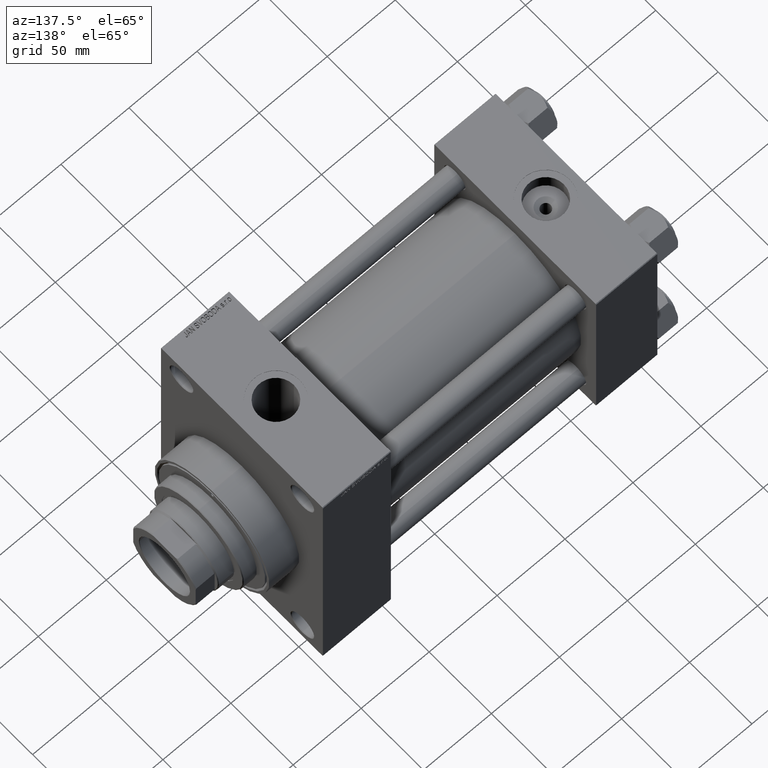
[diagram: clean part render]
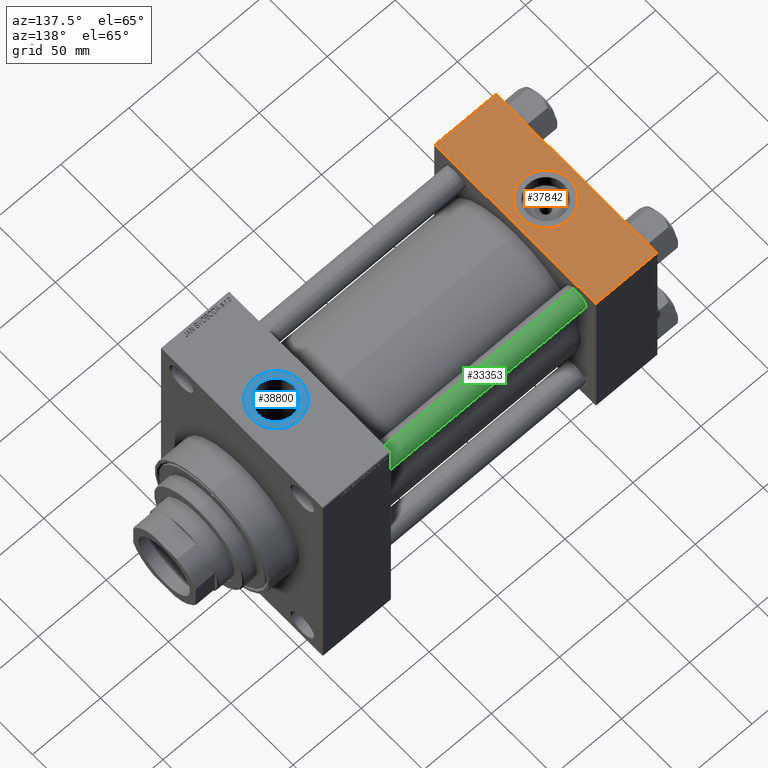
[diagram: same view with three faces highlighted in distinct colors, each labeled with its STEP entity id]
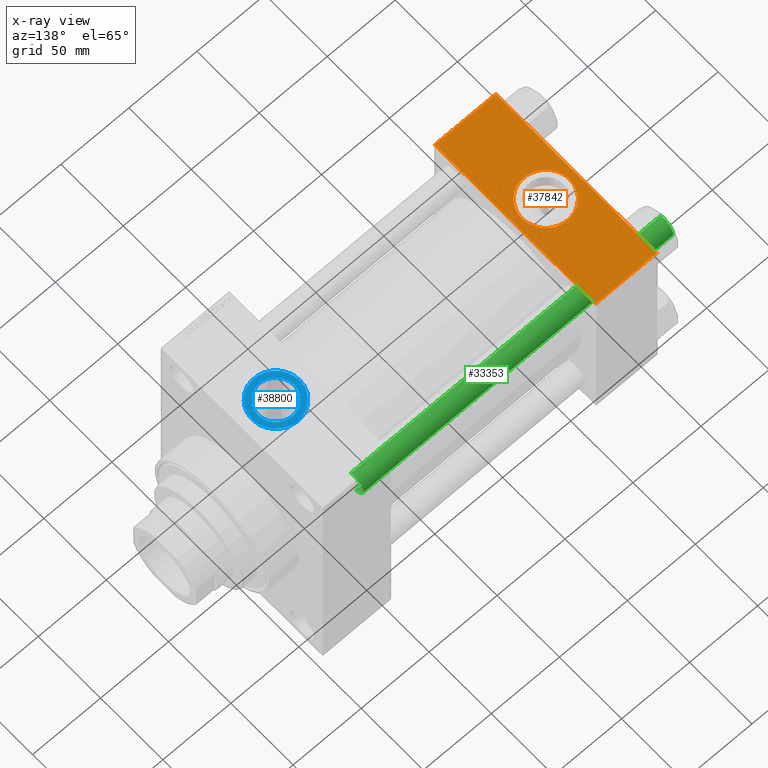
[diagram: x-ray of the same camera — body ghosted, the three highlighted faces saturated]
A machine part, auxiliary view with three faces highlighted in distinct colors.
The next image is the same camera in x-ray (body ghosted, the three faces saturated) — at least one of them is partly hidden behind the body in this view.
Their STEP definitions:

[orange] entity #37842 — the highlighted planar face has unit normal (0, 0, -1).
#776 = CARTESIAN_POINT ( 'NONE',  ( 0.000000000000000000, 65.00000000000000000, 65.00000000000001421 ) ) ;
#1755 = DIRECTION ( 'NONE',  ( 0.000000000000000000, 1.067522139062650548E-16, -1.000000000000000000 ) ) ;
#2551 = VECTOR ( 'NONE', #31020, 1000.000000000000000 ) ;
#4969 = CARTESIAN_POINT ( 'NONE',  ( 0.000000000000000000, 64.49999999999997158, 65.00000000000001421 ) ) ;
#5208 = DIRECTION ( 'NONE',  ( -1.000000000000000000, 0.000000000000000000, 0.000000000000000000 ) ) ;
#5519 = CARTESIAN_POINT ( 'NONE',  ( 40.00000000000000000, -8.673617379884035472E-15, 65.00000000000000000 ) ) ;
#5635 = PLANE ( 'NONE',  #20284 ) ;
#6346 = DIRECTION ( 'NONE',  ( 0.000000000000000000, 1.000000000000000000, 1.067522139062650548E-16 ) ) ;
#6394 = EDGE_CURVE ( 'NONE', #9992, #20948, #29551, .T. ) ;
#7665 = ORIENTED_EDGE ( 'NONE', *, *, #47264, .T. ) ;
#8619 = CARTESIAN_POINT ( 'NONE',  ( 22.50000000000000000, -8.673617379884035472E-15, 65.00000000000000000 ) ) ;
#9411 = LINE ( 'NONE', #20813, #2551 ) ;
#9992 = VERTEX_POINT ( 'NONE', #5519 ) ;
#12484 = DIRECTION ( 'NONE',  ( 1.000000000000000000, 0.000000000000000000, 0.000000000000000000 ) ) ;
#12872 = ORIENTED_EDGE ( 'NONE', *, *, #47202, .F. ) ;
#12874 = EDGE_CURVE ( 'NONE', #20948, #9992, #29118, .T. ) ;
#13391 = CARTESIAN_POINT ( 'NONE',  ( 45.00000000000000000, 65.00000000000000000, 65.00000000000001421 ) ) ;
#13632 = FACE_BOUND ( 'NONE', #38224, .T. ) ;
#15410 = DIRECTION ( 'NONE',  ( 0.000000000000000000, 0.000000000000000000, 1.000000000000000000 ) ) ;
#15467 = VECTOR ( 'NONE', #5208, 1000.000000000000000 ) ;
#18499 = CARTESIAN_POINT ( 'NONE',  ( 45.00000000000000000, 65.00000000000000000, 65.00000000000001421 ) ) ;
#18850 = VERTEX_POINT ( 'NONE', #24603 ) ;
#20284 = AXIS2_PLACEMENT_3D ( 'NONE', #13391, #1755, #6346 ) ;
#20813 = CARTESIAN_POINT ( 'NONE',  ( 45.00000000000000000, -64.49999999999997158, 65.00000000000000000 ) ) ;
#20948 = VERTEX_POINT ( 'NONE', #40118 ) ;
#22913 = AXIS2_PLACEMENT_3D ( 'NONE', #8619, #15410, #30468 ) ;
#23875 = VERTEX_POINT ( 'NONE', #31416 ) ;
#24603 = CARTESIAN_POINT ( 'NONE',  ( 0.000000000000000000, 64.49999999999997158, 65.00000000000001421 ) ) ;
#25319 = LINE ( 'NONE', #18499, #39079 ) ;
#26778 = EDGE_CURVE ( 'NONE', #35205, #18850, #35044, .T. ) ;
#27217 = LINE ( 'NONE', #776, #46813 ) ;
#27941 = ORIENTED_EDGE ( 'NONE', *, *, #26778, .T. ) ;
#29118 = CIRCLE ( 'NONE', #22913, 17.50000000000000000 ) ;
#29551 = CIRCLE ( 'NONE', #32630, 17.50000000000000000 ) ;
#30145 = DIRECTION ( 'NONE',  ( 0.000000000000000000, -1.000000000000000000, -1.067522139062650425E-16 ) ) ;
#30455 = CARTESIAN_POINT ( 'NONE',  ( 22.50000000000000000, -8.673617379884035472E-15, 65.00000000000000000 ) ) ;
#30468 = DIRECTION ( 'NONE',  ( 1.000000000000000000, 0.000000000000000000, 0.000000000000000000 ) ) ;
#31020 = DIRECTION ( 'NONE',  ( 1.000000000000000000, 0.000000000000000000, 0.000000000000000000 ) ) ;
#31416 = CARTESIAN_POINT ( 'NONE',  ( 45.00000000000000000, -64.49999999999997158, 65.00000000000000000 ) ) ;
#32630 = AXIS2_PLACEMENT_3D ( 'NONE', #30455, #33369, #12484 ) ;
#33269 = EDGE_LOOP ( 'NONE', ( #7665, #36679, #12872, #27941 ) ) ;
#33297 = DIRECTION ( 'NONE',  ( 0.000000000000000000, -1.000000000000000000, -1.067522139062650425E-16 ) ) ;
#33369 = DIRECTION ( 'NONE',  ( 0.000000000000000000, 0.000000000000000000, 1.000000000000000000 ) ) ;
#35044 = LINE ( 'NONE', #4969, #15467 ) ;
#35205 = VERTEX_POINT ( 'NONE', #36999 ) ;
#36679 = ORIENTED_EDGE ( 'NONE', *, *, #39456, .T. ) ;
#36999 = CARTESIAN_POINT ( 'NONE',  ( 45.00000000000000000, 64.49999999999997158, 65.00000000000001421 ) ) ;
#37167 = CARTESIAN_POINT ( 'NONE',  ( 0.000000000000000000, -64.49999999999997158, 65.00000000000000000 ) ) ;
#37842 = ADVANCED_FACE ( 'NONE', ( #13632, #42975 ), #5635, .F. ) ;
#38224 = EDGE_LOOP ( 'NONE', ( #40084, #47821 ) ) ;
#39079 = VECTOR ( 'NONE', #33297, 1000.000000000000000 ) ;
#39456 = EDGE_CURVE ( 'NONE', #46203, #23875, #9411, .T. ) ;
#40084 = ORIENTED_EDGE ( 'NONE', *, *, #6394, .F. ) ;
#40118 = CARTESIAN_POINT ( 'NONE',  ( 4.999999999999997335, -6.530485481376167224E-15, 65.00000000000000000 ) ) ;
#42975 = FACE_OUTER_BOUND ( 'NONE', #33269, .T. ) ;
#46203 = VERTEX_POINT ( 'NONE', #37167 ) ;
#46813 = VECTOR ( 'NONE', #30145, 1000.000000000000000 ) ;
#47202 = EDGE_CURVE ( 'NONE', #35205, #23875, #25319, .T. ) ;
#47264 = EDGE_CURVE ( 'NONE', #18850, #46203, #27217, .T. ) ;
#47821 = ORIENTED_EDGE ( 'NONE', *, *, #12874, .F. ) ;

[blue] entity #38800 — the highlighted planar face has unit normal (0, 0, 1).
#1392 = CIRCLE ( 'NONE', #30835, 13.22000000000000952 ) ;
#1575 = DIRECTION ( 'NONE',  ( 1.000000000000000000, 0.000000000000000000, -0.000000000000000000 ) ) ;
#1799 = DIRECTION ( 'NONE',  ( 1.000000000000000000, 0.000000000000000000, 0.000000000000000000 ) ) ;
#1992 = DIRECTION ( 'NONE',  ( 1.000000000000000000, 0.000000000000000000, 0.000000000000000000 ) ) ;
#3020 = EDGE_CURVE ( 'NONE', #45276, #22109, #13166, .T. ) ;
#5685 = ORIENTED_EDGE ( 'NONE', *, *, #9330, .T. ) ;
#7147 = AXIS2_PLACEMENT_3D ( 'NONE', #24144, #34815, #1575 ) ;
#9330 = EDGE_CURVE ( 'NONE', #25663, #41429, #42122, .T. ) ;
#12977 = FACE_BOUND ( 'NONE', #38607, .T. ) ;
#13166 = CIRCLE ( 'NONE', #30982, 13.22000000000000952 ) ;
#13535 = DIRECTION ( 'NONE',  ( 1.000000000000000000, 0.000000000000000000, 0.000000000000000000 ) ) ;
#13766 = DIRECTION ( 'NONE',  ( -0.000000000000000000, -0.000000000000000000, -1.000000000000000000 ) ) ;
#16579 = AXIS2_PLACEMENT_3D ( 'NONE', #20435, #35227, #1992 ) ;
#16927 = CARTESIAN_POINT ( 'NONE',  ( 220.9999999999999716, 0.000000000000000000, 94.79999999999996874 ) ) ;
#17299 = ORIENTED_EDGE ( 'NONE', *, *, #39076, .T. ) ;
#20019 = PLANE ( 'NONE',  #7147 ) ;
#20238 = CARTESIAN_POINT ( 'NONE',  ( 220.9999999999999716, 0.000000000000000000, 94.79999999999996874 ) ) ;
#20435 = CARTESIAN_POINT ( 'NONE',  ( 220.9999999999999716, 0.000000000000000000, 94.79999999999996874 ) ) ;
#21289 = ORIENTED_EDGE ( 'NONE', *, *, #21921, .T. ) ;
#21921 = EDGE_CURVE ( 'NONE', #22109, #45276, #1392, .T. ) ;
#22109 = VERTEX_POINT ( 'NONE', #23630 ) ;
#23630 = CARTESIAN_POINT ( 'NONE',  ( 207.7799999999999727, 0.000000000000000000, 94.79999999999996874 ) ) ;
#24144 = CARTESIAN_POINT ( 'NONE',  ( 220.9999999999999716, 0.000000000000000000, 94.79999999999996874 ) ) ;
#25663 = VERTEX_POINT ( 'NONE', #38163 ) ;
#25754 = AXIS2_PLACEMENT_3D ( 'NONE', #36849, #43632, #29575 ) ;
#28567 = EDGE_LOOP ( 'NONE', ( #17299, #5685 ) ) ;
#29412 = CARTESIAN_POINT ( 'NONE',  ( 234.2199999999999704, 1.618983068472802926E-15, 94.79999999999996874 ) ) ;
#29575 = DIRECTION ( 'NONE',  ( 1.000000000000000000, 0.000000000000000000, 0.000000000000000000 ) ) ;
#30124 = ORIENTED_EDGE ( 'NONE', *, *, #3020, .T. ) ;
#30835 = AXIS2_PLACEMENT_3D ( 'NONE', #16927, #13766, #13535 ) ;
#30982 = AXIS2_PLACEMENT_3D ( 'NONE', #20238, #35034, #1799 ) ;
#31934 = CARTESIAN_POINT ( 'NONE',  ( 238.5000000000000000, 0.000000000000000000, 94.79999999999996874 ) ) ;
#34815 = DIRECTION ( 'NONE',  ( 0.000000000000000000, 0.000000000000000000, 1.000000000000000000 ) ) ;
#35034 = DIRECTION ( 'NONE',  ( -0.000000000000000000, -0.000000000000000000, -1.000000000000000000 ) ) ;
#35227 = DIRECTION ( 'NONE',  ( 0.000000000000000000, 0.000000000000000000, 1.000000000000000000 ) ) ;
#36849 = CARTESIAN_POINT ( 'NONE',  ( 220.9999999999999716, 0.000000000000000000, 94.79999999999996874 ) ) ;
#38163 = CARTESIAN_POINT ( 'NONE',  ( 203.4999999999999716, 2.143131898507871404E-15, 94.79999999999996874 ) ) ;
#38607 = EDGE_LOOP ( 'NONE', ( #21289, #30124 ) ) ;
#38800 = ADVANCED_FACE ( 'NONE', ( #12977, #42079 ), #20019, .T. ) ;
#38913 = CIRCLE ( 'NONE', #25754, 17.50000000000001421 ) ;
#39076 = EDGE_CURVE ( 'NONE', #41429, #25663, #38913, .T. ) ;
#41429 = VERTEX_POINT ( 'NONE', #31934 ) ;
#42079 = FACE_OUTER_BOUND ( 'NONE', #28567, .T. ) ;
#42122 = CIRCLE ( 'NONE', #16579, 17.50000000000001421 ) ;
#43632 = DIRECTION ( 'NONE',  ( 0.000000000000000000, 0.000000000000000000, 1.000000000000000000 ) ) ;
#45276 = VERTEX_POINT ( 'NONE', #29412 ) ;

[green] entity #33353 — the highlighted cylindrical surface (edge-blend (fillet) strip) has radius 8 mm, axis along (-1, -0, 0).
#1000 = AXIS2_PLACEMENT_3D ( 'NONE', #30224, #37499, #45464 ) ;
#2865 = DIRECTION ( 'NONE',  ( 1.000000000000000000, 0.000000000000000000, 0.000000000000000000 ) ) ;
#4056 = EDGE_CURVE ( 'NONE', #24947, #16238, #44914, .T. ) ;
#7001 = AXIS2_PLACEMENT_3D ( 'NONE', #32236, #14495, #2865 ) ;
#8079 = ORIENTED_EDGE ( 'NONE', *, *, #9563, .T. ) ;
#8140 = FACE_OUTER_BOUND ( 'NONE', #14881, .T. ) ;
#9472 = ORIENTED_EDGE ( 'NONE', *, *, #4056, .T. ) ;
#9563 = EDGE_CURVE ( 'NONE', #17403, #15730, #14260, .T. ) ;
#9925 = EDGE_CURVE ( 'NONE', #16238, #17403, #37789, .T. ) ;
#12074 = CARTESIAN_POINT ( 'NONE',  ( 8.000000000000000000, 9.797174393178823685E-16, 229.0000000000000000 ) ) ;
#12621 = CARTESIAN_POINT ( 'NONE',  ( 0.000000000000000000, 0.000000000000000000, 0.5000000000001392220 ) ) ;
#13023 = ORIENTED_EDGE ( 'NONE', *, *, #36542, .F. ) ;
#13460 = AXIS2_PLACEMENT_3D ( 'NONE', #12621, #45088, #27419 ) ;
#14260 = CIRCLE ( 'NONE', #13460, 8.000000000000000000 ) ;
#14495 = DIRECTION ( 'NONE',  ( 0.000000000000000000, 0.000000000000000000, -1.000000000000000000 ) ) ;
#14881 = EDGE_LOOP ( 'NONE', ( #9472, #33724, #8079, #13023 ) ) ;
#15730 = VERTEX_POINT ( 'NONE', #27990 ) ;
#16238 = VERTEX_POINT ( 'NONE', #26430 ) ;
#16611 = VECTOR ( 'NONE', #22517, 1000.000000000000000 ) ;
#17403 = VERTEX_POINT ( 'NONE', #38267 ) ;
#22517 = DIRECTION ( 'NONE',  ( -0.000000000000000000, -0.000000000000000000, -1.000000000000000000 ) ) ;
#24947 = VERTEX_POINT ( 'NONE', #39588 ) ;
#26430 = CARTESIAN_POINT ( 'NONE',  ( 8.000000000000000000, 9.797174393178823685E-16, 228.5000000000000853 ) ) ;
#27419 = DIRECTION ( 'NONE',  ( 1.000000000000000000, 0.000000000000000000, 0.000000000000000000 ) ) ;
#27990 = CARTESIAN_POINT ( 'NONE',  ( -8.000000000000000000, 0.000000000000000000, 0.5000000000001392220 ) ) ;
#30151 = LINE ( 'NONE', #37422, #39051 ) ;
#30224 = CARTESIAN_POINT ( 'NONE',  ( 0.000000000000000000, 0.000000000000000000, 229.0000000000000000 ) ) ;
#32236 = CARTESIAN_POINT ( 'NONE',  ( 0.000000000000000000, 0.000000000000000000, 228.5000000000000853 ) ) ;
#33353 = ADVANCED_FACE ( 'NONE', ( #8140 ), #34338, .T. ) ;
#33724 = ORIENTED_EDGE ( 'NONE', *, *, #9925, .T. ) ;
#34260 = DIRECTION ( 'NONE',  ( -0.000000000000000000, -0.000000000000000000, -1.000000000000000000 ) ) ;
#34338 = CYLINDRICAL_SURFACE ( 'NONE', #1000, 8.000000000000000000 ) ;
#36542 = EDGE_CURVE ( 'NONE', #24947, #15730, #30151, .T. ) ;
#37422 = CARTESIAN_POINT ( 'NONE',  ( -8.000000000000000000, 0.000000000000000000, 229.0000000000000000 ) ) ;
#37499 = DIRECTION ( 'NONE',  ( -0.000000000000000000, -0.000000000000000000, -1.000000000000000000 ) ) ;
#37789 = LINE ( 'NONE', #12074, #16611 ) ;
#38267 = CARTESIAN_POINT ( 'NONE',  ( 8.000000000000000000, 9.797174393178823685E-16, 0.5000000000001392220 ) ) ;
#39051 = VECTOR ( 'NONE', #34260, 1000.000000000000000 ) ;
#39588 = CARTESIAN_POINT ( 'NONE',  ( -8.000000000000000000, 0.000000000000000000, 228.5000000000000853 ) ) ;
#44914 = CIRCLE ( 'NONE', #7001, 8.000000000000000000 ) ;
#45088 = DIRECTION ( 'NONE',  ( -0.000000000000000000, -0.000000000000000000, 1.000000000000000000 ) ) ;
#45464 = DIRECTION ( 'NONE',  ( -1.000000000000000000, 0.000000000000000000, 0.000000000000000000 ) ) ;